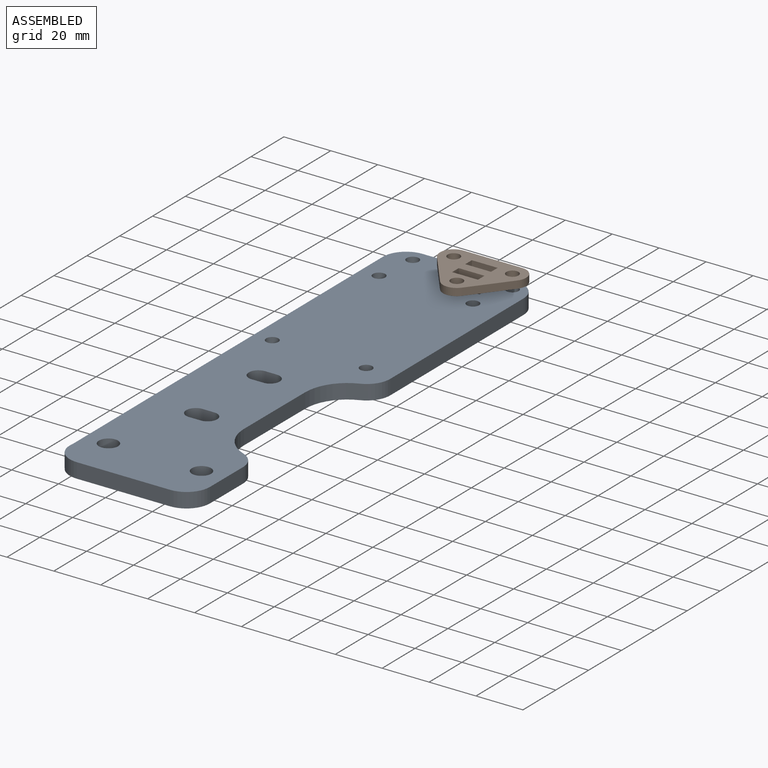
[diagram: assembled view]
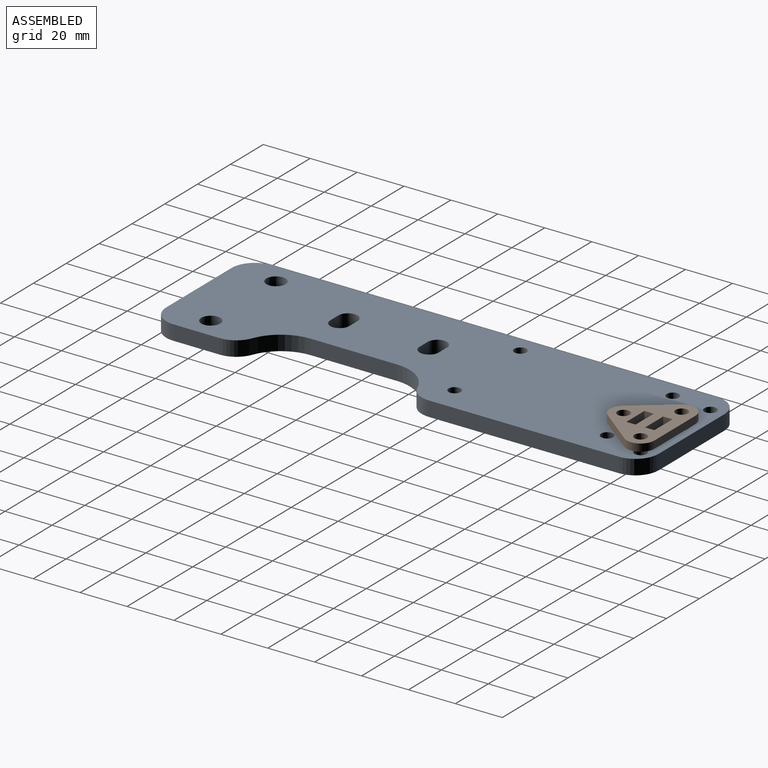
[diagram: assembled view, second angle]
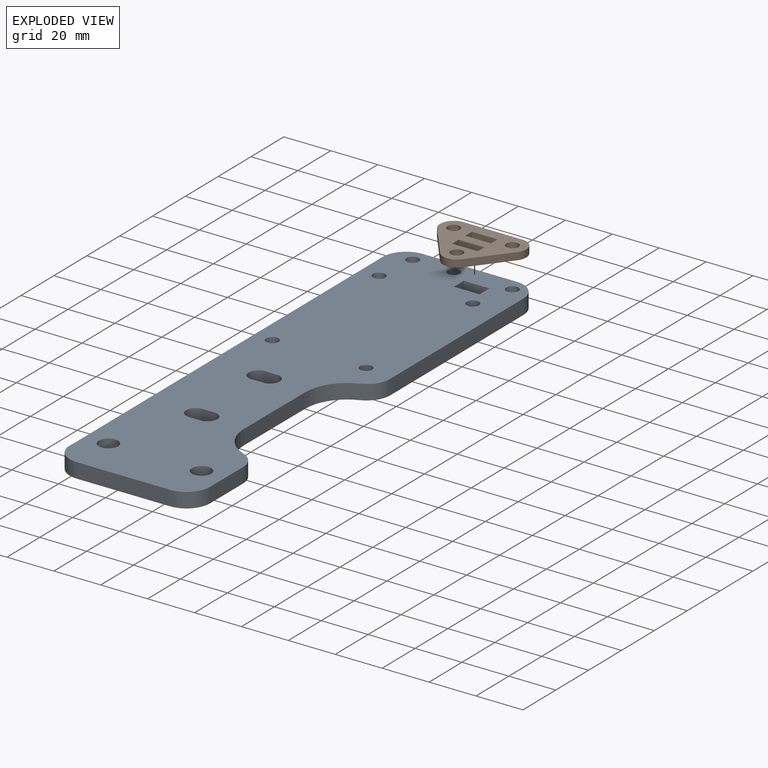
[diagram: exploded view]
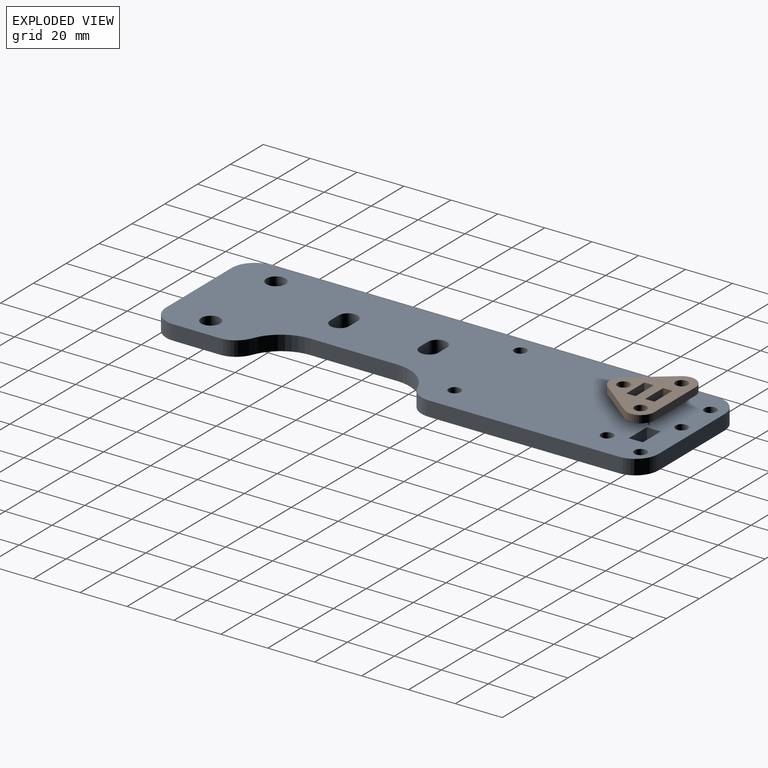
[diagram: exploded view, second angle]
ASSEMBLY  parts=2 mates=2
PART A: 37 faces, bbox 60.2x210.3x6.4 mm
  f0: cylinder r=4.1mm len=8.2mm, axis (0,0,-1), area 81.8mm2, adj f1,f34,f35,f36
  f1: plane 6.35x5mm, normal (0,-1,0), area 31.8mm2, adj f0,f2,f35,f36
  f2: cylinder r=4.1mm len=8.2mm, axis (0,0,-1), area 81.8mm2, adj f1,f34,f35,f36
  f3: cylinder r=4.1mm len=8.2mm, axis (0,0,-1), area 81.8mm2, adj f4,f22,f35,f36
  f4: plane 6.35x5mm, normal (0,-1,0), area 31.8mm2, adj f3,f5,f35,f36
  f5: cylinder r=4.1mm len=8.2mm, axis (0,0,-1), area 81.8mm2, adj f4,f22,f35,f36
  f6: cylinder r=18mm len=16.86mm, axis (0,0,-1), area 137.7mm2, adj f7,f32,f35,f36
  f7: plane 37.04x6.35mm, normal (1,0,0), area 235.2mm2, adj f6,f8,f35,f36
  f8: cylinder r=18mm len=16.73mm, axis (0,0,-1), area 137.3mm2, adj f7,f9,f35,f36
  f9: cylinder r=10mm len=9.34mm, axis (0,0,-1), area 76.5mm2, adj f8,f10,f35,f36
  f10: plane 81.09x6.35mm, normal (1,0,0), area 514.9mm2, adj f9,f11,f35,f36
  f11: cylinder r=10mm len=10mm, axis (0,0,-1), area 99.7mm2, adj f10,f12,f35,f36
  f12: plane 40x6.35mm, normal (0,1,0), area 254mm2, adj f11,f13,f35,f36
  f13: cylinder r=10mm len=10mm, axis (0,0,-1), area 99.7mm2, adj f12,f14,f35,f36
  f14: plane 188.54x6.35mm, normal (-1,0,0), area 1197.2mm2, adj f13,f15,f35,f36
  f15: cylinder r=10mm len=11.76mm, axis (0,0,-1), area 111mm2, adj f14,f16,f35,f36
  f16: plane 39.78x6.35mm, normal (0,-1,0), area 252.6mm2, adj f15,f17,f35,f36
  f17: cylinder r=10mm len=10mm, axis (0,0,-1), area 99.5mm2, adj f16,f18,f35,f36
  f18: plane 19.92x6.35mm, normal (1,0,0), area 126.5mm2, adj f17,f32,f35,f36
  f19: plane 6.35x6mm, normal (1,0,0), area 38.1mm2, adj f20,f33,f35,f36
  f20: plane 11x6.35mm, normal (0,-1,0), area 69.8mm2, adj f19,f21,f35,f36
  f21: plane 6.35x6mm, normal (-1,0,0), area 38.1mm2, adj f20,f33,f35,f36
  f22: plane 6.35x5mm, normal (0,1,0), area 31.8mm2, adj f3,f5,f35,f36
  f23: cylinder r=2.6mm len=6.35mm, axis (0,0,-1), area 103.7mm2, adj f35,f36
  f24: cylinder r=2.6mm len=6.35mm, axis (0,0,-1), area 103.7mm2, adj f35,f36
  f25: cylinder r=2.6mm len=6.35mm, axis (0,0,-1), area 103.7mm2, adj f35,f36
  f26: cylinder r=4.1mm len=8.2mm, axis (0,0,-1), area 163.6mm2, adj f35,f36
  f27: cylinder r=4.1mm len=8.2mm, axis (0,0,-1), area 163.6mm2, adj f35,f36
  f28: cylinder r=2.6mm len=6.35mm, axis (0,0,-1), area 103.7mm2, adj f35,f36
  f29: cylinder r=2.6mm len=6.35mm, axis (0,0,-1), area 103.7mm2, adj f35,f36
  f30: cylinder r=2.6mm len=6.35mm, axis (0,0,-1), area 103.7mm2, adj f35,f36
  f31: cylinder r=2.6mm len=6.35mm, axis (0,0,-1), area 103.7mm2, adj f35,f36
  f32: cylinder r=10mm len=9.36mm, axis (0,0,-1), area 76.5mm2, adj f6,f18,f35,f36
  f33: plane 11x6.35mm, normal (0,1,0), area 69.8mm2, adj f19,f21,f35,f36
  f34: plane 6.35x5mm, normal (0,1,0), area 31.8mm2, adj f0,f2,f35,f36
  f35: plane 210.3x60.16mm, normal (0,0,1), area 10810.1mm2, adj f0,f1,f2,f3,f4,f5,f6,f7
  f36: plane 210.3x60.16mm, normal (0,0,-1), area 10810.1mm2, adj f0,f1,f2,f3,f4,f5,f6,f7
PART B: 19 faces, bbox 36.7x27.7x3.2 mm
  f0: plane 11x3.18mm, normal (0,-1,0), area 34.9mm2, adj f1,f16,f17,f18
  f1: plane 4x3.18mm, normal (-1,0,0), area 12.7mm2, adj f0,f2,f17,f18
  f2: plane 11x3.18mm, normal (0,1,0), area 34.9mm2, adj f1,f16,f17,f18
  f3: plane 11x3.18mm, normal (0,-1,0), area 34.9mm2, adj f4,f11,f17,f18
  f4: plane 4x3.18mm, normal (-1,0,0), area 12.7mm2, adj f3,f5,f17,f18
  f5: plane 11x3.18mm, normal (0,1,0), area 34.9mm2, adj f4,f11,f17,f18
  f6: plane 24.99x3.18mm, normal (0,1,0), area 79.3mm2, adj f7,f15,f17,f18
  f7: cylinder r=5.87mm len=9.49mm, axis (0,0,-1), area 41.7mm2, adj f6,f8,f17,f18
  f8: plane 16x12.5mm, normal (-0.79,-0.62,0), area 64.5mm2, adj f7,f9,f17,f18
  f9: cylinder r=5.87mm len=9.26mm, axis (0,0,-1), area 33.9mm2, adj f8,f10,f17,f18
  f10: plane 16x12.5mm, normal (0.79,-0.62,0), area 64.5mm2, adj f9,f15,f17,f18
  f11: plane 4x3.18mm, normal (1,0,0), area 12.7mm2, adj f3,f5,f17,f18
  f12: cylinder r=2.6mm len=5.2mm, axis (0,0,-1), area 51.9mm2, adj f17,f18
  f13: cylinder r=2.6mm len=5.2mm, axis (0,0,-1), area 51.9mm2, adj f17,f18
  f14: cylinder r=2.6mm len=5.2mm, axis (0,0,-1), area 51.9mm2, adj f17,f18
  f15: cylinder r=5.87mm len=9.49mm, axis (0,0,-1), area 41.7mm2, adj f6,f10,f17,f18
  f16: plane 4x3.18mm, normal (1,0,0), area 12.7mm2, adj f0,f2,f17,f18
  f17: plane 36.75x27.75mm, normal (0,0,1), area 542mm2, adj f0,f1,f2,f3,f4,f5,f6,f7
  f18: plane 36.75x27.75mm, normal (0,0,-1), area 542mm2, adj f0,f1,f2,f3,f4,f5,f6,f7
PLACE A t=(31.96,-7.07,-39.69)mm fixed
PLACE B t=(57.04,102.14,-30.49)mm
MATE cylindrical B.f13 <-> A.f25  axis (0,0,-1) through (69.54,105.63,-30.49)mm
MATE cylindrical A.f23 <-> B.f7  axis (0,0,1) through (44.54,105.63,-33.34)mm
